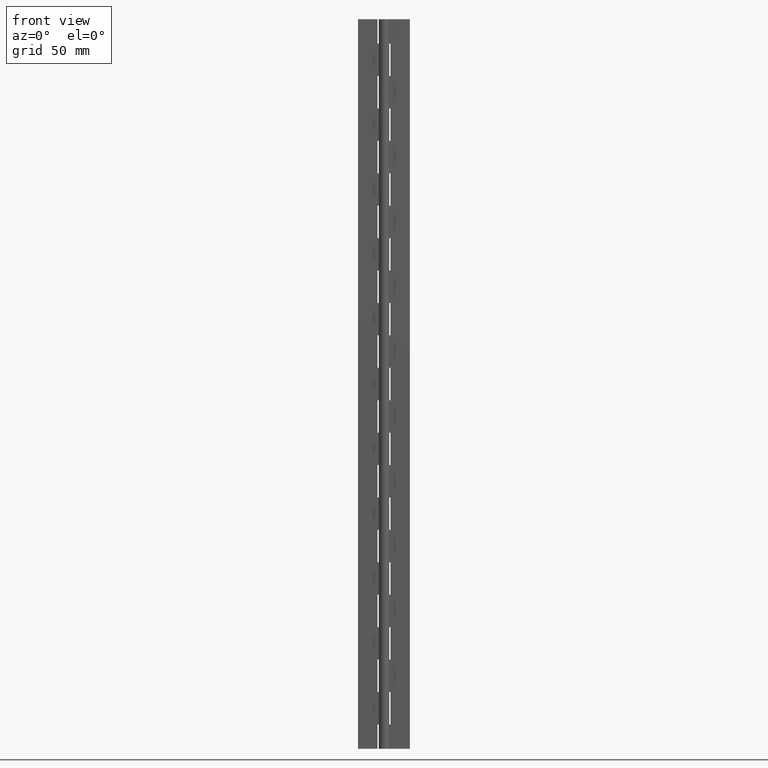
[diagram: clean part render]
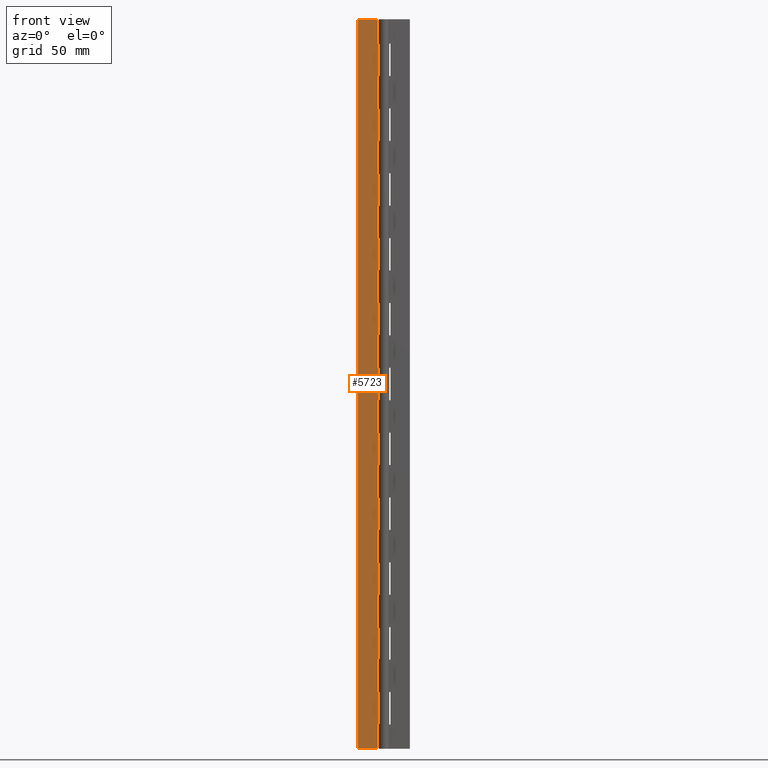
[diagram: same view with one face highlighted and labeled with its STEP entity id]
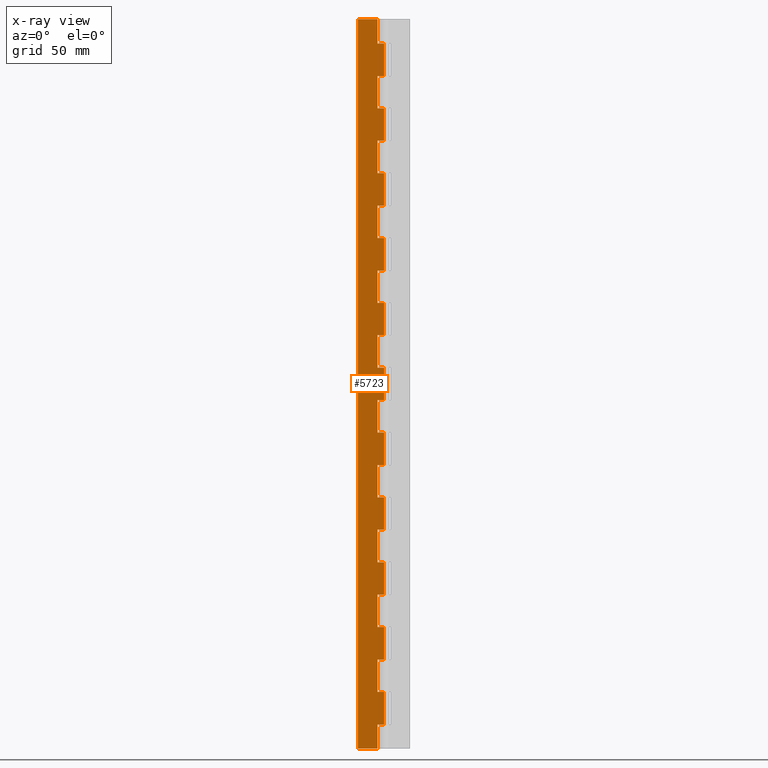
[diagram: x-ray of the same camera — body ghosted, the highlighted face saturated]
A machine part, front view. The second image highlights one B-rep face of the part: STEP entity #5723.
The next image is the same camera in x-ray: the body ghosted, the highlighted face saturated — about 0% of this face is hidden behind the body in this view.
In plain terms, the highlighted face is a freeform B-spline surface patch.
Its self-contained STEP definition (entity closure, byte-faithful):
#3627=CARTESIAN_POINT('',(1.071563E-016,1.750000000000000,15.000021999999950));
#3628=VERTEX_POINT('',#3627);
#3648=CARTESIAN_POINT('',(-4.0,1.750000000000030,15.000022000000000));
#3649=VERTEX_POINT('',#3648);
#3650=CARTESIAN_POINT('',(1.071563E-016,1.750000000000000,15.000021999999950));
#3651=CARTESIAN_POINT('',(-4.0,1.750000000000030,15.000022000000000));
#3652=QUASI_UNIFORM_CURVE('',1,(#3650,#3651),.UNSPECIFIED.,.F.,.U.);
#3653=EDGE_CURVE('',#3628,#3649,#3652,.T.);
#3675=CARTESIAN_POINT('',(-4.0,1.750000000000000,-1.421085E-014));
#3676=VERTEX_POINT('',#3675);
#3677=CARTESIAN_POINT('',(-4.0,1.750000000000030,15.000022000000000));
#3678=CARTESIAN_POINT('',(-4.0,1.750000000000000,-1.421085E-014));
#3679=QUASI_UNIFORM_CURVE('',1,(#3677,#3678),.UNSPECIFIED.,.F.,.U.);
#3680=EDGE_CURVE('',#3649,#3676,#3679,.T.);
#3733=CARTESIAN_POINT('',(-4.0,1.750000000000000,35.000021999999952));
#3734=VERTEX_POINT('',#3733);
#3740=CARTESIAN_POINT('',(1.071563E-016,1.750000000000000,35.000021999999952));
#3741=VERTEX_POINT('',#3740);
#3742=CARTESIAN_POINT('',(-4.0,1.750000000000000,35.000021999999952));
#3743=CARTESIAN_POINT('',(1.071563E-016,1.750000000000000,35.000021999999952));
#3744=QUASI_UNIFORM_CURVE('',1,(#3742,#3743),.UNSPECIFIED.,.F.,.U.);
#3745=EDGE_CURVE('',#3734,#3741,#3744,.T.);
#3811=CARTESIAN_POINT('',(1.071563E-016,1.750000000000000,55.000022000000001));
#3812=VERTEX_POINT('',#3811);
#3832=CARTESIAN_POINT('',(-4.0,1.750000000000030,55.000022000000001));
#3833=VERTEX_POINT('',#3832);
#3834=CARTESIAN_POINT('',(1.071563E-016,1.750000000000000,55.000022000000001));
#3835=CARTESIAN_POINT('',(-4.0,1.750000000000030,55.000022000000001));
#3836=QUASI_UNIFORM_CURVE('',1,(#3834,#3835),.UNSPECIFIED.,.F.,.U.);
#3837=EDGE_CURVE('',#3812,#3833,#3836,.T.);
#3859=CARTESIAN_POINT('',(-4.0,1.750000000000030,55.000022000000001));
#3860=CARTESIAN_POINT('',(-4.0,1.750000000000000,35.000021999999952));
#3861=QUASI_UNIFORM_CURVE('',1,(#3859,#3860),.UNSPECIFIED.,.F.,.U.);
#3862=EDGE_CURVE('',#3833,#3734,#3861,.T.);
#3909=CARTESIAN_POINT('',(-4.0,1.750000000000000,75.000022000000001));
#3910=VERTEX_POINT('',#3909);
#3916=CARTESIAN_POINT('',(1.071563E-016,1.750000000000000,75.000022000000001));
#3917=VERTEX_POINT('',#3916);
#3918=CARTESIAN_POINT('',(-4.0,1.750000000000000,75.000022000000001));
#3919=CARTESIAN_POINT('',(1.071563E-016,1.750000000000000,75.000022000000001));
#3920=QUASI_UNIFORM_CURVE('',1,(#3918,#3919),.UNSPECIFIED.,.F.,.U.);
#3921=EDGE_CURVE('',#3910,#3917,#3920,.T.);
#3987=CARTESIAN_POINT('',(1.071563E-016,1.750000000000000,95.000022000000001));
#3988=VERTEX_POINT('',#3987);
#4008=CARTESIAN_POINT('',(-4.0,1.750000000000030,95.000022000000001));
#4009=VERTEX_POINT('',#4008);
#4010=CARTESIAN_POINT('',(1.071563E-016,1.750000000000000,95.000022000000001));
#4011=CARTESIAN_POINT('',(-4.0,1.750000000000030,95.000022000000001));
#4012=QUASI_UNIFORM_CURVE('',1,(#4010,#4011),.UNSPECIFIED.,.F.,.U.);
#4013=EDGE_CURVE('',#3988,#4009,#4012,.T.);
#4035=CARTESIAN_POINT('',(-4.0,1.750000000000030,95.000022000000001));
#4036=CARTESIAN_POINT('',(-4.0,1.750000000000000,75.000022000000001));
#4037=QUASI_UNIFORM_CURVE('',1,(#4035,#4036),.UNSPECIFIED.,.F.,.U.);
#4038=EDGE_CURVE('',#4009,#3910,#4037,.T.);
#4085=CARTESIAN_POINT('',(-4.0,1.750000000000000,115.000022000000000));
#4086=VERTEX_POINT('',#4085);
#4092=CARTESIAN_POINT('',(1.071563E-016,1.750000000000000,115.000022000000000));
#4093=VERTEX_POINT('',#4092);
#4094=CARTESIAN_POINT('',(-4.0,1.750000000000000,115.000022000000000));
#4095=CARTESIAN_POINT('',(1.071563E-016,1.750000000000000,115.000022000000000));
#4096=QUASI_UNIFORM_CURVE('',1,(#4094,#4095),.UNSPECIFIED.,.F.,.U.);
#4097=EDGE_CURVE('',#4086,#4093,#4096,.T.);
#4163=CARTESIAN_POINT('',(1.071563E-016,1.750000000000000,135.000022000000000));
#4164=VERTEX_POINT('',#4163);
#4184=CARTESIAN_POINT('',(-4.0,1.750000000000030,135.000022000000000));
#4185=VERTEX_POINT('',#4184);
#4186=CARTESIAN_POINT('',(1.071563E-016,1.750000000000000,135.000022000000000));
#4187=CARTESIAN_POINT('',(-4.0,1.750000000000030,135.000022000000000));
#4188=QUASI_UNIFORM_CURVE('',1,(#4186,#4187),.UNSPECIFIED.,.F.,.U.);
#4189=EDGE_CURVE('',#4164,#4185,#4188,.T.);
#4211=CARTESIAN_POINT('',(-4.0,1.750000000000030,135.000022000000000));
#4212=CARTESIAN_POINT('',(-4.0,1.750000000000000,115.000022000000000));
#4213=QUASI_UNIFORM_CURVE('',1,(#4211,#4212),.UNSPECIFIED.,.F.,.U.);
#4214=EDGE_CURVE('',#4185,#4086,#4213,.T.);
#4261=CARTESIAN_POINT('',(-4.0,1.750000000000000,155.000022000000000));
#4262=VERTEX_POINT('',#4261);
#4268=CARTESIAN_POINT('',(1.071563E-016,1.750000000000000,155.000022000000000));
#4269=VERTEX_POINT('',#4268);
#4270=CARTESIAN_POINT('',(-4.0,1.750000000000000,155.000022000000000));
#4271=CARTESIAN_POINT('',(1.071563E-016,1.750000000000000,155.000022000000000));
#4272=QUASI_UNIFORM_CURVE('',1,(#4270,#4271),.UNSPECIFIED.,.F.,.U.);
#4273=EDGE_CURVE('',#4262,#4269,#4272,.T.);
#4339=CARTESIAN_POINT('',(1.071563E-016,1.750000000000000,175.000022000000000));
#4340=VERTEX_POINT('',#4339);
#4360=CARTESIAN_POINT('',(-4.0,1.750000000000030,175.000022000000000));
#4361=VERTEX_POINT('',#4360);
#4362=CARTESIAN_POINT('',(1.071563E-016,1.750000000000000,175.000022000000000));
#4363=CARTESIAN_POINT('',(-4.0,1.750000000000030,175.000022000000000));
#4364=QUASI_UNIFORM_CURVE('',1,(#4362,#4363),.UNSPECIFIED.,.F.,.U.);
#4365=EDGE_CURVE('',#4340,#4361,#4364,.T.);
#4387=CARTESIAN_POINT('',(-4.0,1.750000000000030,175.000022000000000));
#4388=CARTESIAN_POINT('',(-4.0,1.750000000000000,155.000022000000000));
#4389=QUASI_UNIFORM_CURVE('',1,(#4387,#4388),.UNSPECIFIED.,.F.,.U.);
#4390=EDGE_CURVE('',#4361,#4262,#4389,.T.);
#4437=CARTESIAN_POINT('',(-4.0,1.750000000000000,195.000022000000000));
#4438=VERTEX_POINT('',#4437);
#4444=CARTESIAN_POINT('',(1.071563E-016,1.750000000000000,195.000022000000000));
#4445=VERTEX_POINT('',#4444);
#4446=CARTESIAN_POINT('',(-4.0,1.750000000000000,195.000022000000000));
#4447=CARTESIAN_POINT('',(1.071563E-016,1.750000000000000,195.000022000000000));
#4448=QUASI_UNIFORM_CURVE('',1,(#4446,#4447),.UNSPECIFIED.,.F.,.U.);
#4449=EDGE_CURVE('',#4438,#4445,#4448,.T.);
#4515=CARTESIAN_POINT('',(1.071563E-016,1.750000000000000,215.000022000000000));
#4516=VERTEX_POINT('',#4515);
#4536=CARTESIAN_POINT('',(-4.0,1.750000000000030,215.000022000000000));
#4537=VERTEX_POINT('',#4536);
#4538=CARTESIAN_POINT('',(1.071563E-016,1.750000000000000,215.000022000000000));
#4539=CARTESIAN_POINT('',(-4.0,1.750000000000030,215.000022000000000));
#4540=QUASI_UNIFORM_CURVE('',1,(#4538,#4539),.UNSPECIFIED.,.F.,.U.);
#4541=EDGE_CURVE('',#4516,#4537,#4540,.T.);
#4563=CARTESIAN_POINT('',(-4.0,1.750000000000030,215.000022000000000));
#4564=CARTESIAN_POINT('',(-4.0,1.750000000000000,195.000022000000000));
#4565=QUASI_UNIFORM_CURVE('',1,(#4563,#4564),.UNSPECIFIED.,.F.,.U.);
#4566=EDGE_CURVE('',#4537,#4438,#4565,.T.);
#4613=CARTESIAN_POINT('',(-4.0,1.750000000000000,235.000022000000000));
#4614=VERTEX_POINT('',#4613);
#4620=CARTESIAN_POINT('',(1.071563E-016,1.750000000000000,235.000022000000000));
#4621=VERTEX_POINT('',#4620);
#4622=CARTESIAN_POINT('',(-4.0,1.750000000000000,235.000022000000000));
#4623=CARTESIAN_POINT('',(1.071563E-016,1.750000000000000,235.000022000000000));
#4624=QUASI_UNIFORM_CURVE('',1,(#4622,#4623),.UNSPECIFIED.,.F.,.U.);
#4625=EDGE_CURVE('',#4614,#4621,#4624,.T.);
#4691=CARTESIAN_POINT('',(1.071563E-016,1.750000000000000,255.000022000000000));
#4692=VERTEX_POINT('',#4691);
#4712=CARTESIAN_POINT('',(-4.0,1.750000000000030,255.000022000000000));
#4713=VERTEX_POINT('',#4712);
#4714=CARTESIAN_POINT('',(1.071563E-016,1.750000000000000,255.000022000000000));
#4715=CARTESIAN_POINT('',(-4.0,1.750000000000030,255.000022000000000));
#4716=QUASI_UNIFORM_CURVE('',1,(#4714,#4715),.UNSPECIFIED.,.F.,.U.);
#4717=EDGE_CURVE('',#4692,#4713,#4716,.T.);
#4739=CARTESIAN_POINT('',(-4.0,1.750000000000030,255.000022000000000));
#4740=CARTESIAN_POINT('',(-4.0,1.750000000000000,235.000022000000000));
#4741=QUASI_UNIFORM_CURVE('',1,(#4739,#4740),.UNSPECIFIED.,.F.,.U.);
#4742=EDGE_CURVE('',#4713,#4614,#4741,.T.);
#4789=CARTESIAN_POINT('',(-4.0,1.750000000000000,275.000022000000000));
#4790=VERTEX_POINT('',#4789);
#4796=CARTESIAN_POINT('',(1.071563E-016,1.750000000000000,275.000022000000000));
#4797=VERTEX_POINT('',#4796);
#4798=CARTESIAN_POINT('',(-4.0,1.750000000000000,275.000022000000000));
#4799=CARTESIAN_POINT('',(1.071563E-016,1.750000000000000,275.000022000000000));
#4800=QUASI_UNIFORM_CURVE('',1,(#4798,#4799),.UNSPECIFIED.,.F.,.U.);
#4801=EDGE_CURVE('',#4790,#4797,#4800,.T.);
#4867=CARTESIAN_POINT('',(1.071563E-016,1.750000000000000,295.000021999999890));
#4868=VERTEX_POINT('',#4867);
#4888=CARTESIAN_POINT('',(-4.0,1.750000000000030,295.000021999999890));
#4889=VERTEX_POINT('',#4888);
#4890=CARTESIAN_POINT('',(1.071563E-016,1.750000000000000,295.000021999999890));
#4891=CARTESIAN_POINT('',(-4.0,1.750000000000030,295.000021999999890));
#4892=QUASI_UNIFORM_CURVE('',1,(#4890,#4891),.UNSPECIFIED.,.F.,.U.);
#4893=EDGE_CURVE('',#4868,#4889,#4892,.T.);
#4915=CARTESIAN_POINT('',(-4.0,1.750000000000030,295.000021999999890));
#4916=CARTESIAN_POINT('',(-4.0,1.750000000000000,275.000022000000000));
#4917=QUASI_UNIFORM_CURVE('',1,(#4915,#4916),.UNSPECIFIED.,.F.,.U.);
#4918=EDGE_CURVE('',#4889,#4790,#4917,.T.);
#4965=CARTESIAN_POINT('',(-4.0,1.750000000000000,315.000022000000000));
#4966=VERTEX_POINT('',#4965);
#4972=CARTESIAN_POINT('',(1.071563E-016,1.750000000000000,315.000022000000000));
#4973=VERTEX_POINT('',#4972);
#4974=CARTESIAN_POINT('',(-4.0,1.750000000000000,315.000022000000000));
#4975=CARTESIAN_POINT('',(1.071563E-016,1.750000000000000,315.000022000000000));
#4976=QUASI_UNIFORM_CURVE('',1,(#4974,#4975),.UNSPECIFIED.,.F.,.U.);
#4977=EDGE_CURVE('',#4966,#4973,#4976,.T.);
#5043=CARTESIAN_POINT('',(1.071563E-016,1.750000000000000,335.000022000000000));
#5044=VERTEX_POINT('',#5043);
#5064=CARTESIAN_POINT('',(-4.0,1.750000000000030,335.000022000000000));
#5065=VERTEX_POINT('',#5064);
#5066=CARTESIAN_POINT('',(1.071563E-016,1.750000000000000,335.000022000000000));
#5067=CARTESIAN_POINT('',(-4.0,1.750000000000030,335.000022000000000));
#5068=QUASI_UNIFORM_CURVE('',1,(#5066,#5067),.UNSPECIFIED.,.F.,.U.);
#5069=EDGE_CURVE('',#5044,#5065,#5068,.T.);
#5091=CARTESIAN_POINT('',(-4.0,1.750000000000030,335.000022000000000));
#5092=CARTESIAN_POINT('',(-4.0,1.750000000000000,315.000022000000000));
#5093=QUASI_UNIFORM_CURVE('',1,(#5091,#5092),.UNSPECIFIED.,.F.,.U.);
#5094=EDGE_CURVE('',#5065,#4966,#5093,.T.);
#5141=CARTESIAN_POINT('',(-4.0,1.750000000000000,355.000022000000000));
#5142=VERTEX_POINT('',#5141);
#5148=CARTESIAN_POINT('',(1.071563E-016,1.750000000000000,355.000022000000000));
#5149=VERTEX_POINT('',#5148);
#5150=CARTESIAN_POINT('',(-4.0,1.750000000000000,355.000022000000000));
#5151=CARTESIAN_POINT('',(1.071563E-016,1.750000000000000,355.000022000000000));
#5152=QUASI_UNIFORM_CURVE('',1,(#5150,#5151),.UNSPECIFIED.,.F.,.U.);
#5153=EDGE_CURVE('',#5142,#5149,#5152,.T.);
#5219=CARTESIAN_POINT('',(1.071563E-016,1.750000000000000,375.000022000000000));
#5220=VERTEX_POINT('',#5219);
#5240=CARTESIAN_POINT('',(-4.0,1.750000000000030,375.000022000000000));
#5241=VERTEX_POINT('',#5240);
#5242=CARTESIAN_POINT('',(1.071563E-016,1.750000000000000,375.000022000000000));
#5243=CARTESIAN_POINT('',(-4.0,1.750000000000030,375.000022000000000));
#5244=QUASI_UNIFORM_CURVE('',1,(#5242,#5243),.UNSPECIFIED.,.F.,.U.);
#5245=EDGE_CURVE('',#5220,#5241,#5244,.T.);
#5267=CARTESIAN_POINT('',(-4.0,1.750000000000030,375.000022000000000));
#5268=CARTESIAN_POINT('',(-4.0,1.750000000000000,355.000022000000000));
#5269=QUASI_UNIFORM_CURVE('',1,(#5267,#5268),.UNSPECIFIED.,.F.,.U.);
#5270=EDGE_CURVE('',#5241,#5142,#5269,.T.);
#5317=CARTESIAN_POINT('',(-4.0,1.750000000000000,395.000022000000000));
#5318=VERTEX_POINT('',#5317);
#5324=CARTESIAN_POINT('',(1.071563E-016,1.750000000000000,395.000022000000000));
#5325=VERTEX_POINT('',#5324);
#5326=CARTESIAN_POINT('',(-4.0,1.750000000000000,395.000022000000000));
#5327=CARTESIAN_POINT('',(1.071563E-016,1.750000000000000,395.000022000000000));
#5328=QUASI_UNIFORM_CURVE('',1,(#5326,#5327),.UNSPECIFIED.,.F.,.U.);
#5329=EDGE_CURVE('',#5318,#5325,#5328,.T.);
#5395=CARTESIAN_POINT('',(1.071563E-016,1.750000000000000,415.000022000000000));
#5396=VERTEX_POINT('',#5395);
#5416=CARTESIAN_POINT('',(-4.0,1.750000000000030,415.000022000000000));
#5417=VERTEX_POINT('',#5416);
#5418=CARTESIAN_POINT('',(1.071563E-016,1.750000000000000,415.000022000000000));
#5419=CARTESIAN_POINT('',(-4.0,1.750000000000030,415.000022000000000));
#5420=QUASI_UNIFORM_CURVE('',1,(#5418,#5419),.UNSPECIFIED.,.F.,.U.);
#5421=EDGE_CURVE('',#5396,#5417,#5420,.T.);
#5443=CARTESIAN_POINT('',(-4.0,1.750000000000030,415.000022000000000));
#5444=CARTESIAN_POINT('',(-4.0,1.750000000000000,395.000022000000000));
#5445=QUASI_UNIFORM_CURVE('',1,(#5443,#5444),.UNSPECIFIED.,.F.,.U.);
#5446=EDGE_CURVE('',#5417,#5318,#5445,.T.);
#5493=CARTESIAN_POINT('',(-4.0,1.750000000000030,435.000022000000000));
#5494=VERTEX_POINT('',#5493);
#5500=CARTESIAN_POINT('',(1.071563E-016,1.750000000000000,435.000022000000000));
#5501=VERTEX_POINT('',#5500);
#5502=CARTESIAN_POINT('',(-4.0,1.750000000000030,435.000022000000000));
#5503=CARTESIAN_POINT('',(1.071563E-016,1.750000000000000,435.000022000000000));
#5504=QUASI_UNIFORM_CURVE('',1,(#5502,#5503),.UNSPECIFIED.,.F.,.U.);
#5505=EDGE_CURVE('',#5494,#5501,#5504,.T.);
#5541=CARTESIAN_POINT('',(-4.0,1.750000000000030,450.000022000000000));
#5542=VERTEX_POINT('',#5541);
#5543=CARTESIAN_POINT('',(-4.0,1.750000000000030,450.000022000000000));
#5544=CARTESIAN_POINT('',(-4.0,1.750000000000030,435.000022000000000));
#5545=QUASI_UNIFORM_CURVE('',1,(#5543,#5544),.UNSPECIFIED.,.F.,.U.);
#5546=EDGE_CURVE('',#5542,#5494,#5545,.T.);
#5570=CARTESIAN_POINT('',(-16.0,1.750000000000000,0.0));
#5571=VERTEX_POINT('',#5570);
#5572=CARTESIAN_POINT('',(-4.0,1.750000000000000,-1.421085E-014));
#5573=CARTESIAN_POINT('',(-16.0,1.750000000000000,0.0));
#5574=QUASI_UNIFORM_CURVE('',1,(#5572,#5573),.UNSPECIFIED.,.F.,.U.);
#5575=EDGE_CURVE('',#3676,#5571,#5574,.T.);
#5597=CARTESIAN_POINT('',(-16.0,1.750000000000000,450.000022000000000));
#5598=VERTEX_POINT('',#5597);
#5599=CARTESIAN_POINT('',(-4.0,1.750000000000030,450.000022000000000));
#5600=CARTESIAN_POINT('',(-16.0,1.750000000000000,450.000022000000000));
#5601=QUASI_UNIFORM_CURVE('',1,(#5599,#5600),.UNSPECIFIED.,.F.,.U.);
#5602=EDGE_CURVE('',#5542,#5598,#5601,.T.);
#5620=CARTESIAN_POINT('',(-16.799199968988891,1.750000000000000,472.477530675269180));
#5621=CARTESIAN_POINT('',(-16.799199968988891,1.750000000000000,-22.477512698582810));
#5622=CARTESIAN_POINT('',(0.799200398142338,1.750000000000000,472.477530675269180));
#5623=CARTESIAN_POINT('',(0.799200398142338,1.750000000000000,-22.477512698582810));
#5624=B_SPLINE_SURFACE_WITH_KNOTS('',1,1,((#5620,#5622),(#5621,#5623)),.UNSPECIFIED.,.F.,.F.,.U.,(2,2),(2,2),(0.0,494.955043373852110),(0.0,17.598400367131230),.UNSPECIFIED.);
#5625=ORIENTED_EDGE('',*,*,#3680,.F.);
#5626=ORIENTED_EDGE('',*,*,#3653,.F.);
#5627=CARTESIAN_POINT('',(1.071563E-016,1.750000000000000,35.000021999999952));
#5628=CARTESIAN_POINT('',(1.071563E-016,1.750000000000000,15.000021999999950));
#5629=QUASI_UNIFORM_CURVE('',1,(#5627,#5628),.UNSPECIFIED.,.F.,.U.);
#5630=EDGE_CURVE('',#3741,#3628,#5629,.T.);
#5631=ORIENTED_EDGE('',*,*,#5630,.F.);
#5632=ORIENTED_EDGE('',*,*,#3745,.F.);
#5633=ORIENTED_EDGE('',*,*,#3862,.F.);
#5634=ORIENTED_EDGE('',*,*,#3837,.F.);
#5635=CARTESIAN_POINT('',(1.071563E-016,1.750000000000000,75.000022000000001));
#5636=CARTESIAN_POINT('',(1.071563E-016,1.750000000000000,55.000022000000001));
#5637=QUASI_UNIFORM_CURVE('',1,(#5635,#5636),.UNSPECIFIED.,.F.,.U.);
#5638=EDGE_CURVE('',#3917,#3812,#5637,.T.);
#5639=ORIENTED_EDGE('',*,*,#5638,.F.);
#5640=ORIENTED_EDGE('',*,*,#3921,.F.);
#5641=ORIENTED_EDGE('',*,*,#4038,.F.);
#5642=ORIENTED_EDGE('',*,*,#4013,.F.);
#5643=CARTESIAN_POINT('',(1.071563E-016,1.750000000000000,115.000022000000000));
#5644=CARTESIAN_POINT('',(1.071563E-016,1.750000000000000,95.000022000000001));
#5645=QUASI_UNIFORM_CURVE('',1,(#5643,#5644),.UNSPECIFIED.,.F.,.U.);
#5646=EDGE_CURVE('',#4093,#3988,#5645,.T.);
#5647=ORIENTED_EDGE('',*,*,#5646,.F.);
#5648=ORIENTED_EDGE('',*,*,#4097,.F.);
#5649=ORIENTED_EDGE('',*,*,#4214,.F.);
#5650=ORIENTED_EDGE('',*,*,#4189,.F.);
#5651=CARTESIAN_POINT('',(1.071563E-016,1.750000000000000,155.000022000000000));
#5652=CARTESIAN_POINT('',(1.071563E-016,1.750000000000000,135.000022000000000));
#5653=QUASI_UNIFORM_CURVE('',1,(#5651,#5652),.UNSPECIFIED.,.F.,.U.);
#5654=EDGE_CURVE('',#4269,#4164,#5653,.T.);
#5655=ORIENTED_EDGE('',*,*,#5654,.F.);
#5656=ORIENTED_EDGE('',*,*,#4273,.F.);
#5657=ORIENTED_EDGE('',*,*,#4390,.F.);
#5658=ORIENTED_EDGE('',*,*,#4365,.F.);
#5659=CARTESIAN_POINT('',(1.071563E-016,1.750000000000000,195.000022000000000));
#5660=CARTESIAN_POINT('',(1.071563E-016,1.750000000000000,175.000022000000000));
#5661=QUASI_UNIFORM_CURVE('',1,(#5659,#5660),.UNSPECIFIED.,.F.,.U.);
#5662=EDGE_CURVE('',#4445,#4340,#5661,.T.);
#5663=ORIENTED_EDGE('',*,*,#5662,.F.);
#5664=ORIENTED_EDGE('',*,*,#4449,.F.);
#5665=ORIENTED_EDGE('',*,*,#4566,.F.);
#5666=ORIENTED_EDGE('',*,*,#4541,.F.);
#5667=CARTESIAN_POINT('',(1.071563E-016,1.750000000000000,235.000022000000000));
#5668=CARTESIAN_POINT('',(1.071563E-016,1.750000000000000,215.000022000000000));
#5669=QUASI_UNIFORM_CURVE('',1,(#5667,#5668),.UNSPECIFIED.,.F.,.U.);
#5670=EDGE_CURVE('',#4621,#4516,#5669,.T.);
#5671=ORIENTED_EDGE('',*,*,#5670,.F.);
#5672=ORIENTED_EDGE('',*,*,#4625,.F.);
#5673=ORIENTED_EDGE('',*,*,#4742,.F.);
#5674=ORIENTED_EDGE('',*,*,#4717,.F.);
#5675=CARTESIAN_POINT('',(1.071563E-016,1.750000000000000,275.000022000000000));
#5676=CARTESIAN_POINT('',(1.071563E-016,1.750000000000000,255.000022000000000));
#5677=QUASI_UNIFORM_CURVE('',1,(#5675,#5676),.UNSPECIFIED.,.F.,.U.);
#5678=EDGE_CURVE('',#4797,#4692,#5677,.T.);
#5679=ORIENTED_EDGE('',*,*,#5678,.F.);
#5680=ORIENTED_EDGE('',*,*,#4801,.F.);
#5681=ORIENTED_EDGE('',*,*,#4918,.F.);
#5682=ORIENTED_EDGE('',*,*,#4893,.F.);
#5683=CARTESIAN_POINT('',(1.071563E-016,1.750000000000000,315.000022000000000));
#5684=CARTESIAN_POINT('',(1.071563E-016,1.750000000000000,295.000021999999890));
#5685=QUASI_UNIFORM_CURVE('',1,(#5683,#5684),.UNSPECIFIED.,.F.,.U.);
#5686=EDGE_CURVE('',#4973,#4868,#5685,.T.);
#5687=ORIENTED_EDGE('',*,*,#5686,.F.);
#5688=ORIENTED_EDGE('',*,*,#4977,.F.);
#5689=ORIENTED_EDGE('',*,*,#5094,.F.);
#5690=ORIENTED_EDGE('',*,*,#5069,.F.);
#5691=CARTESIAN_POINT('',(1.071563E-016,1.750000000000000,355.000022000000000));
#5692=CARTESIAN_POINT('',(1.071563E-016,1.750000000000000,335.000022000000000));
#5693=QUASI_UNIFORM_CURVE('',1,(#5691,#5692),.UNSPECIFIED.,.F.,.U.);
#5694=EDGE_CURVE('',#5149,#5044,#5693,.T.);
#5695=ORIENTED_EDGE('',*,*,#5694,.F.);
#5696=ORIENTED_EDGE('',*,*,#5153,.F.);
#5697=ORIENTED_EDGE('',*,*,#5270,.F.);
#5698=ORIENTED_EDGE('',*,*,#5245,.F.);
#5699=CARTESIAN_POINT('',(1.071563E-016,1.750000000000000,395.000022000000000));
#5700=CARTESIAN_POINT('',(1.071563E-016,1.750000000000000,375.000022000000000));
#5701=QUASI_UNIFORM_CURVE('',1,(#5699,#5700),.UNSPECIFIED.,.F.,.U.);
#5702=EDGE_CURVE('',#5325,#5220,#5701,.T.);
#5703=ORIENTED_EDGE('',*,*,#5702,.F.);
#5704=ORIENTED_EDGE('',*,*,#5329,.F.);
#5705=ORIENTED_EDGE('',*,*,#5446,.F.);
#5706=ORIENTED_EDGE('',*,*,#5421,.F.);
#5707=CARTESIAN_POINT('',(1.071563E-016,1.750000000000000,435.000022000000000));
#5708=CARTESIAN_POINT('',(1.071563E-016,1.750000000000000,415.000022000000000));
#5709=QUASI_UNIFORM_CURVE('',1,(#5707,#5708),.UNSPECIFIED.,.F.,.U.);
#5710=EDGE_CURVE('',#5501,#5396,#5709,.T.);
#5711=ORIENTED_EDGE('',*,*,#5710,.F.);
#5712=ORIENTED_EDGE('',*,*,#5505,.F.);
#5713=ORIENTED_EDGE('',*,*,#5546,.F.);
#5714=ORIENTED_EDGE('',*,*,#5602,.T.);
#5715=CARTESIAN_POINT('',(-16.0,1.750000000000000,450.000022000000000));
#5716=CARTESIAN_POINT('',(-16.0,1.750000000000000,0.0));
#5717=QUASI_UNIFORM_CURVE('',1,(#5715,#5716),.UNSPECIFIED.,.F.,.U.);
#5718=EDGE_CURVE('',#5598,#5571,#5717,.T.);
#5719=ORIENTED_EDGE('',*,*,#5718,.T.);
#5720=ORIENTED_EDGE('',*,*,#5575,.F.);
#5721=EDGE_LOOP('',(#5625,#5626,#5631,#5632,#5633,#5634,#5639,#5640,#5641,#5642,#5647,#5648,#5649,#5650,#5655,#5656,#5657,#5658,#5663,#5664,#5665,#5666,#5671,#5672,#5673,#5674,#5679,#5680,#5681,#5682,#5687,#5688,#5689,#5690,#5695,#5696,#5697,#5698,#5703,#5704,#5705,#5706,#5711,#5712,#5713,#5714,#5719,#5720));
#5722=FACE_OUTER_BOUND('',#5721,.T.);
#5723=ADVANCED_FACE('',(#5722),#5624,.T.);